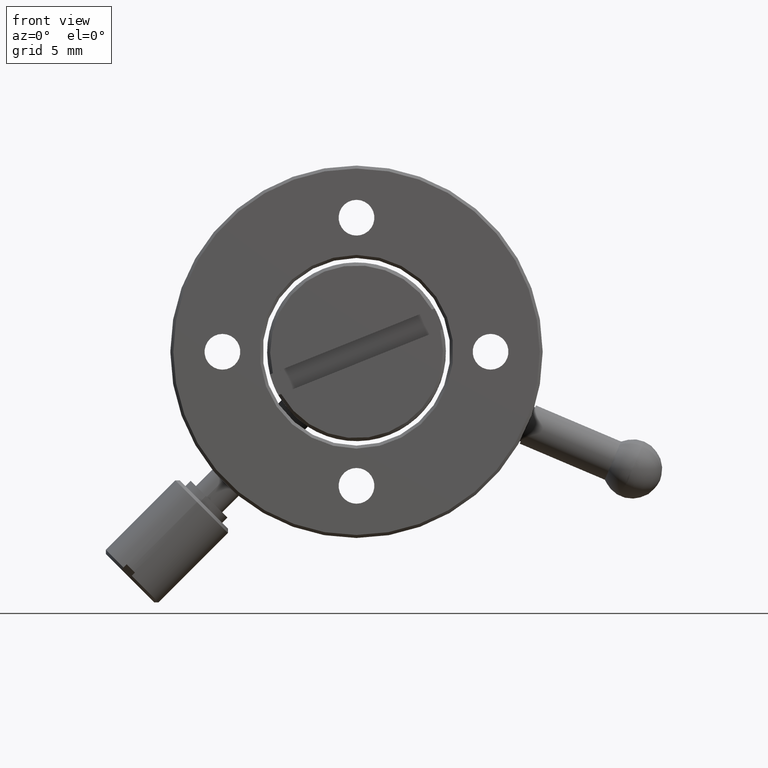
[diagram: clean part render]
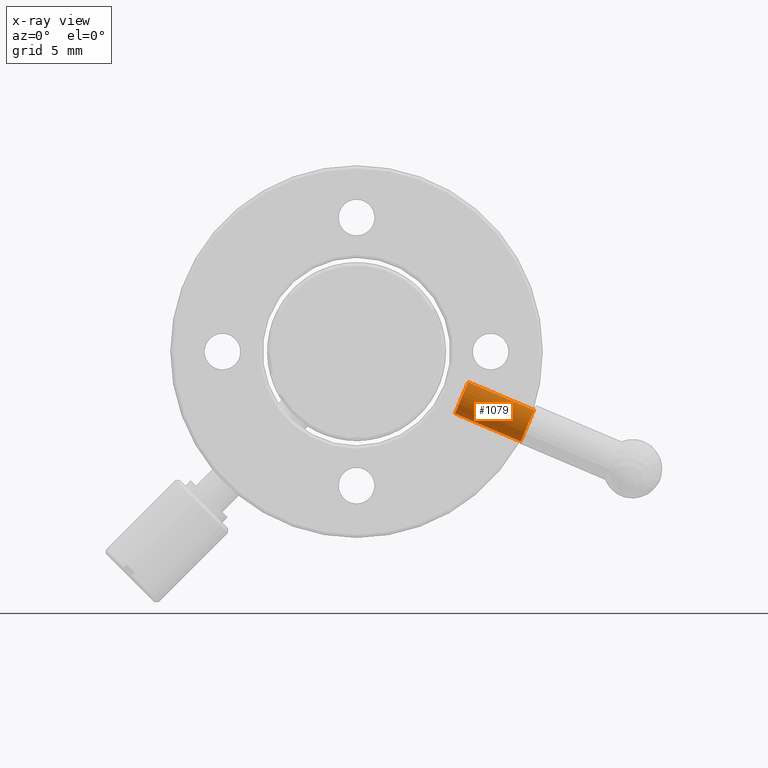
[diagram: x-ray — body ghosted, one internal face saturated and labeled with its STEP entity id]
A machine part, front view, then the same camera in x-ray: the body is ghosted and one INTERNAL B-rep face — a face not visible from any outside direction — is saturated and labeled: STEP entity #1079.
In plain terms, the highlighted cylindrical surface (edge-blend (fillet) strip) has radius 1.25 mm, axis along (-0.9205, -0, 0.3907).
Its self-contained STEP definition (entity closure, byte-faithful):
#14 = CARTESIAN_POINT ( 'NONE',  ( 11.09802269460254642, 10.10601338631475166, -5.846005294548036524 ) ) ;
#44 = VERTEX_POINT ( 'NONE', #14 ) ;
#85 = AXIS2_PLACEMENT_3D ( 'NONE', #1350, #2323, #298 ) ;
#298 = DIRECTION ( 'NONE',  ( 0.3266303788423728371, -0.5488107090517989617, 0.7694929507457165530 ) ) ;
#331 = CIRCLE ( 'NONE', #891, 1.249999999999999556 ) ;
#439 = VECTOR ( 'NONE', #461, 1000.000000000000000 ) ;
#461 = DIRECTION ( 'NONE',  ( -0.9205048534524411519, -5.551115123125782702E-17, 0.3907311284892719949 ) ) ;
#618 = EDGE_CURVE ( 'NONE', #2747, #44, #331, .T. ) ;
#786 = DIRECTION ( 'NONE',  ( -0.9205048534524411519, -5.551115123125782702E-17, 0.3907311284892719949 ) ) ;
#830 = VERTEX_POINT ( 'NONE', #1916 ) ;
#890 = VERTEX_POINT ( 'NONE', #1401 ) ;
#891 = AXIS2_PLACEMENT_3D ( 'NONE', #3026, #3043, #1294 ) ;
#900 = VECTOR ( 'NONE', #786, 1000.000000000000000 ) ;
#1079 = ADVANCED_FACE ( 'NONE', ( #1818 ), #2760, .T. ) ;
#1127 = EDGE_CURVE ( 'NONE', #2747, #890, #1851, .T. ) ;
#1294 = DIRECTION ( 'NONE',  ( -0.3266303788423728371, 0.5488107090517989617, -0.7694929507457165530 ) ) ;
#1350 = CARTESIAN_POINT ( 'NONE',  ( 11.50631066815551229, 9.420000000000003482, -4.884139106115891416 ) ) ;
#1401 = CARTESIAN_POINT ( 'NONE',  ( 7.496175345136762758, 8.733986613685255307, -2.046763500935241176 ) ) ;
#1408 = DIRECTION ( 'NONE',  ( -0.3266303788423727261, 0.5488107090517988507, -0.7694929507457166640 ) ) ;
#1551 = ORIENTED_EDGE ( 'NONE', *, *, #3037, .F. ) ;
#1596 = CARTESIAN_POINT ( 'NONE',  ( 11.91459864170847816, 8.733986613685255307, -3.922272917683745863 ) ) ;
#1632 = ORIENTED_EDGE ( 'NONE', *, *, #1127, .T. ) ;
#1651 = CARTESIAN_POINT ( 'NONE',  ( 7.087887371583796892, 9.420000000000003482, -3.008629689367387172 ) ) ;
#1664 = DIRECTION ( 'NONE',  ( 0.9205048534524411519, 5.551115123125782702E-17, -0.3907311284892719949 ) ) ;
#1679 = ORIENTED_EDGE ( 'NONE', *, *, #1779, .T. ) ;
#1701 = ORIENTED_EDGE ( 'NONE', *, *, #618, .F. ) ;
#1779 = EDGE_CURVE ( 'NONE', #890, #830, #2228, .T. ) ;
#1818 = FACE_OUTER_BOUND ( 'NONE', #2466, .T. ) ;
#1848 = CARTESIAN_POINT ( 'NONE',  ( 11.91459864170847816, 8.733986613685255307, -3.922272917683745863 ) ) ;
#1851 = LINE ( 'NONE', #1596, #900 ) ;
#1916 = CARTESIAN_POINT ( 'NONE',  ( 6.679599398030831914, 10.10601338631475166, -3.970495877799531836 ) ) ;
#2192 = LINE ( 'NONE', #2470, #439 ) ;
#2228 = CIRCLE ( 'NONE', #3038, 1.250000000000000000 ) ;
#2323 = DIRECTION ( 'NONE',  ( -0.9205048534524411519, -5.551115123125782702E-17, 0.3907311284892719949 ) ) ;
#2466 = EDGE_LOOP ( 'NONE', ( #1551, #1701, #1632, #1679 ) ) ;
#2470 = CARTESIAN_POINT ( 'NONE',  ( 11.09802269460254642, 10.10601338631475166, -5.846005294548036524 ) ) ;
#2747 = VERTEX_POINT ( 'NONE', #1848 ) ;
#2760 = CYLINDRICAL_SURFACE ( 'NONE', #85, 1.249999999999999556 ) ;
#3026 = CARTESIAN_POINT ( 'NONE',  ( 11.50631066815551229, 9.420000000000003482, -4.884139106115891416 ) ) ;
#3037 = EDGE_CURVE ( 'NONE', #44, #830, #2192, .T. ) ;
#3038 = AXIS2_PLACEMENT_3D ( 'NONE', #1651, #1664, #1408 ) ;
#3043 = DIRECTION ( 'NONE',  ( 0.9205048534524411519, 5.551115123125782702E-17, -0.3907311284892719949 ) ) ;